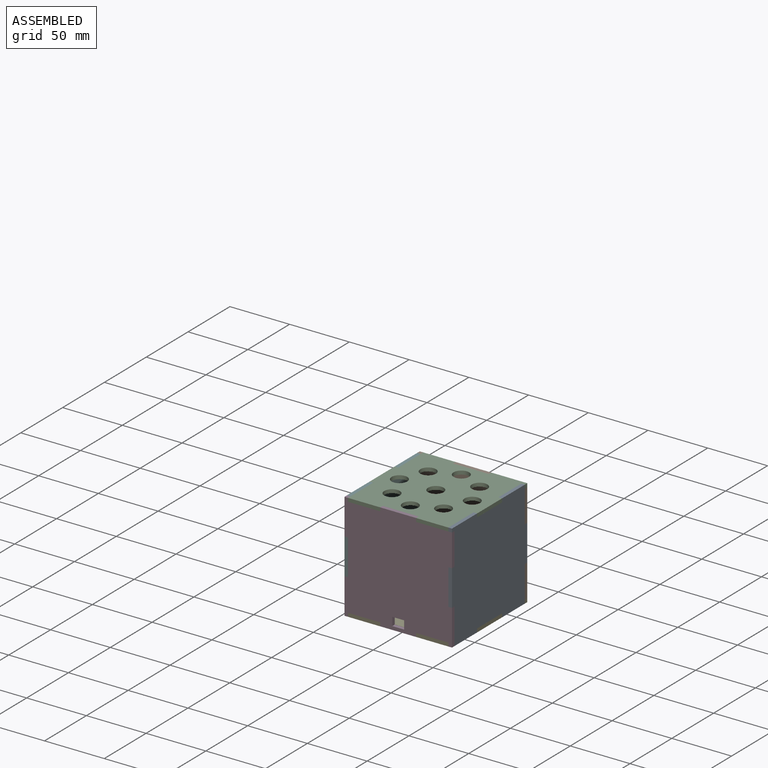
[diagram: assembled view]
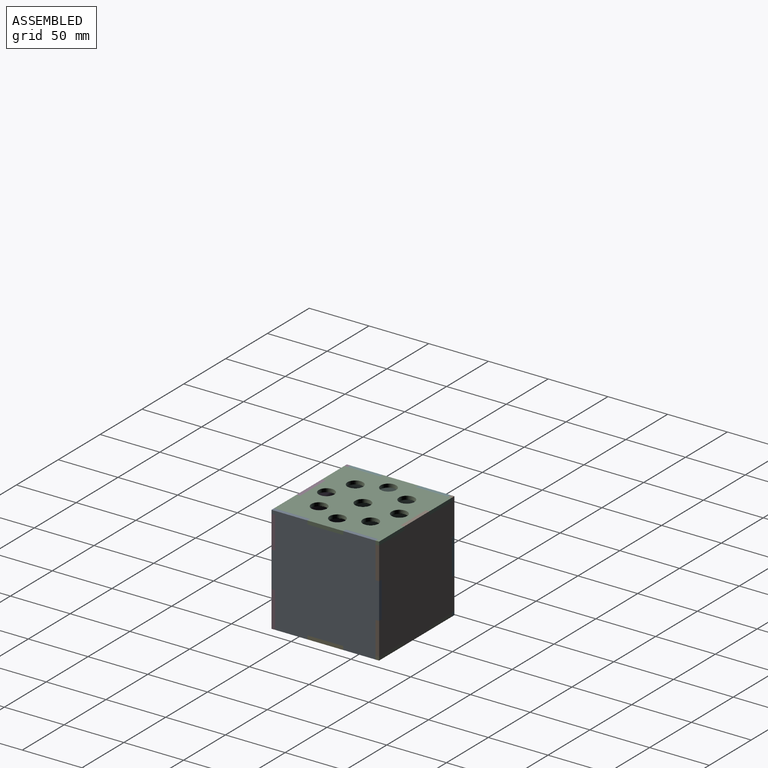
[diagram: assembled view, second angle]
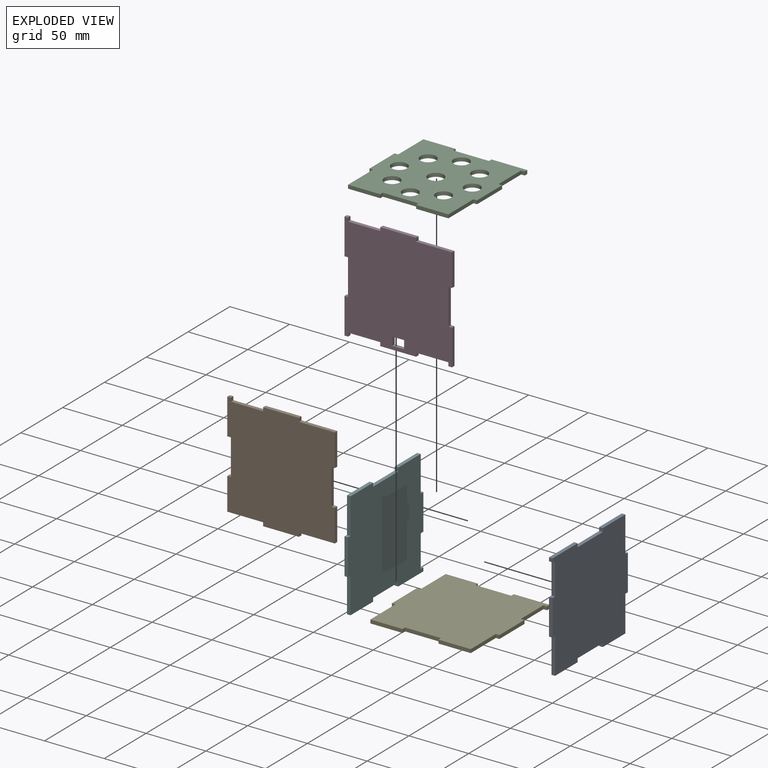
[diagram: exploded view]
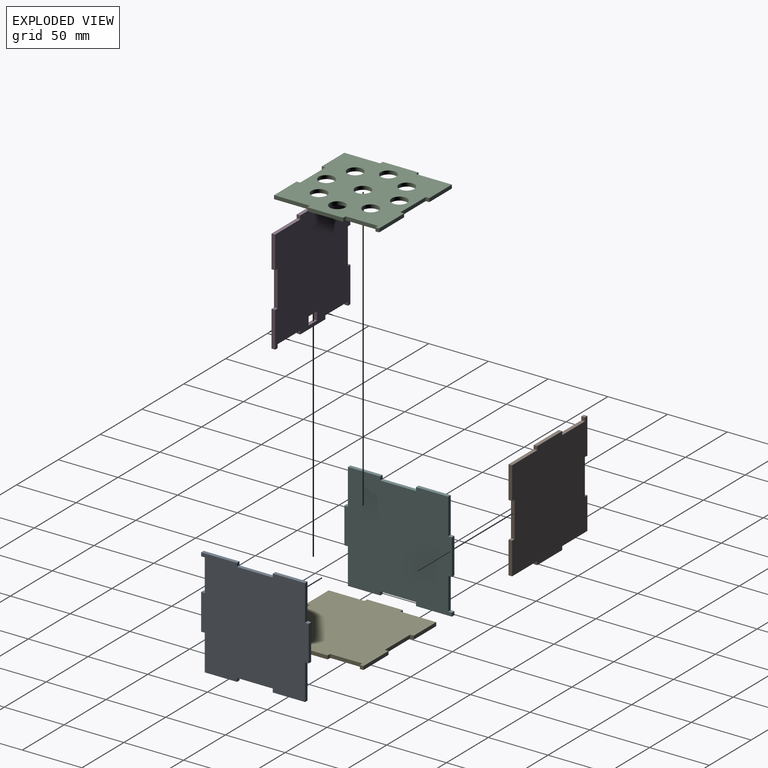
[diagram: exploded view, second angle]
ASSEMBLY  parts=6 mates=5
PART A: 24 faces, bbox 90x90x3 mm
  f0: plane 3x3mm, normal (-1,0,0), area 9mm2, adj f1,f21,f22,f23
  f1: plane 30x3mm, normal (0,-1,0), area 90mm2, adj f0,f2,f22,f23
  f2: plane 3x3mm, normal (1,0,0), area 9mm2, adj f1,f3,f22,f23
  f3: plane 30x3mm, normal (0,-1,0), area 90mm2, adj f2,f4,f22,f23
  f4: plane 27x3mm, normal (1,0,0), area 81mm2, adj f3,f5,f22,f23
  f5: plane 3x3mm, normal (0,1,0), area 9mm2, adj f4,f6,f22,f23
  f6: plane 30x3mm, normal (1,0,0), area 90mm2, adj f5,f7,f22,f23
  f7: plane 3x3mm, normal (0,-1,0), area 9mm2, adj f6,f8,f22,f23
  f8: plane 30x3mm, normal (1,0,0), area 90mm2, adj f7,f9,f22,f23
  f9: plane 3x3mm, normal (0,1,0), area 9mm2, adj f8,f10,f22,f23
  f10: plane 3x3mm, normal (-1,0,0), area 9mm2, adj f9,f11,f22,f23
  f11: plane 27x3mm, normal (0,1,0), area 81mm2, adj f10,f12,f22,f23
  f12: plane 3x3mm, normal (1,0,0), area 9mm2, adj f11,f13,f22,f23
  f13: plane 30x3mm, normal (0,1,0), area 90mm2, adj f12,f14,f22,f23
  f14: plane 3x3mm, normal (-1,0,0), area 9mm2, adj f13,f15,f22,f23
  f15: plane 30x3mm, normal (0,1,0), area 90mm2, adj f14,f16,f22,f23
  f16: plane 27x3mm, normal (-1,0,0), area 81mm2, adj f15,f17,f22,f23
  f17: plane 3x3mm, normal (0,-1,0), area 9mm2, adj f16,f18,f22,f23
  f18: plane 30x3mm, normal (-1,0,0), area 90mm2, adj f17,f19,f22,f23
  f19: plane 3x3mm, normal (0,1,0), area 9mm2, adj f18,f20,f22,f23
  f20: plane 27x3mm, normal (-1,0,0), area 81mm2, adj f19,f21,f22,f23
  f21: plane 30x3mm, normal (0,-1,0), area 90mm2, adj f0,f20,f22,f23
  f22: plane 90x90mm, normal (0,0,1), area 7569mm2, adj f0,f1,f2,f3,f4,f5,f6,f7
  f23: plane 90x90mm, normal (0,0,-1), area 7569mm2, adj f0,f1,f2,f3,f4,f5,f6,f7
PART B: same geometry as A
PART C: 33 faces, bbox 90x90x3 mm
  f0: plane 3x3mm, normal (-1,0,0), area 9mm2, adj f1,f21,f22,f23
  f1: plane 30x3mm, normal (0,-1,0), area 90mm2, adj f0,f2,f22,f23
  f2: plane 3x3mm, normal (1,0,0), area 9mm2, adj f1,f3,f22,f23
  f3: plane 30x3mm, normal (0,-1,0), area 90mm2, adj f2,f4,f22,f23
  f4: plane 27x3mm, normal (1,0,0), area 81mm2, adj f3,f5,f22,f23
  f5: plane 3x3mm, normal (0,1,0), area 9mm2, adj f4,f6,f22,f23
  f6: plane 30x3mm, normal (1,0,0), area 90mm2, adj f5,f7,f22,f23
  f7: plane 3x3mm, normal (0,-1,0), area 9mm2, adj f6,f8,f22,f23
  f8: plane 30x3mm, normal (1,0,0), area 90mm2, adj f7,f9,f22,f23
  f9: plane 3x3mm, normal (0,1,0), area 9mm2, adj f8,f10,f22,f23
  f10: plane 3x3mm, normal (-1,0,0), area 9mm2, adj f9,f11,f22,f23
  f11: plane 27x3mm, normal (0,1,0), area 81mm2, adj f10,f12,f22,f23
  f12: plane 3x3mm, normal (1,0,0), area 9mm2, adj f11,f13,f22,f23
  f13: plane 30x3mm, normal (0,1,0), area 90mm2, adj f12,f14,f22,f23
  f14: plane 3x3mm, normal (-1,0,0), area 9mm2, adj f13,f15,f22,f23
  f15: plane 30x3mm, normal (0,1,0), area 90mm2, adj f14,f16,f22,f23
  f16: plane 27x3mm, normal (-1,0,0), area 81mm2, adj f15,f17,f22,f23
  f17: plane 3x3mm, normal (0,-1,0), area 9mm2, adj f16,f18,f22,f23
  f18: plane 30x3mm, normal (-1,0,0), area 90mm2, adj f17,f19,f22,f23
  f19: plane 3x3mm, normal (0,1,0), area 9mm2, adj f18,f20,f22,f23
  f20: plane 27x3mm, normal (-1,0,0), area 81mm2, adj f19,f21,f22,f23
  f21: plane 30x3mm, normal (0,-1,0), area 90mm2, adj f0,f20,f22,f23
  f22: plane 90x90mm, normal (0,0,1), area 6374.4mm2, adj f0,f1,f2,f3,f4,f5,f6,f7
  f23: plane 90x90mm, normal (0,0,-1), area 6374.4mm2, adj f0,f1,f2,f3,f4,f5,f6,f7
  f24: cylinder r=6.5mm len=13mm, axis (0,0,1), area 122.5mm2, adj f22,f23
  f25: cylinder r=6.5mm len=13mm, axis (0,0,1), area 122.5mm2, adj f22,f23
  f26: cylinder r=6.5mm len=13mm, axis (0,0,1), area 122.5mm2, adj f22,f23
  f27: cylinder r=6.5mm len=13mm, axis (0,0,1), area 122.5mm2, adj f22,f23
  f28: cylinder r=6.5mm len=13mm, axis (0,0,1), area 122.5mm2, adj f22,f23
  f29: cylinder r=6.5mm len=13mm, axis (0,0,1), area 122.5mm2, adj f22,f23
  f30: cylinder r=6.5mm len=13mm, axis (0,0,1), area 122.5mm2, adj f22,f23
  f31: cylinder r=6.5mm len=13mm, axis (0,0,1), area 122.5mm2, adj f22,f23
  f32: cylinder r=6.5mm len=13mm, axis (0,0,1), area 122.5mm2, adj f22,f23
PART D: 32 faces, bbox 90x90x3 mm
  f0: plane 90x90mm, normal (0,0,1), area 7517mm2, adj f2,f3,f4,f5,f6,f7,f8,f9
  f1: plane 90x90mm, normal (0,0,-1), area 7517mm2, adj f2,f3,f4,f5,f6,f7,f8,f9
  f2: plane 3x3mm, normal (-1,0,0), area 9mm2, adj f0,f1,f3,f27
  f3: plane 30x3mm, normal (0,-1,0), area 90mm2, adj f0,f1,f2,f4
  f4: plane 3x3mm, normal (1,0,0), area 9mm2, adj f0,f1,f3,f5
  f5: plane 27x3mm, normal (0,-1,0), area 81mm2, adj f0,f1,f4,f6
  f6: plane 3x3mm, normal (-1,0,0), area 9mm2, adj f0,f1,f5,f7
  f7: plane 3x3mm, normal (0,-1,0), area 9mm2, adj f0,f1,f6,f8
  f8: plane 30x3mm, normal (1,0,0), area 90mm2, adj f0,f1,f7,f9
  f9: plane 3x3mm, normal (0,1,0), area 9mm2, adj f0,f1,f8,f10
  f10: plane 30x3mm, normal (1,0,0), area 90mm2, adj f0,f1,f9,f11
  f11: plane 3x3mm, normal (0,-1,0), area 9mm2, adj f0,f1,f10,f12
  f12: plane 30x3mm, normal (1,0,0), area 90mm2, adj f0,f1,f11,f13
  f13: plane 3x3mm, normal (0,1,0), area 9mm2, adj f0,f1,f12,f14
  f14: plane 3x3mm, normal (-1,0,0), area 9mm2, adj f0,f1,f13,f15
  f15: plane 27x3mm, normal (0,1,0), area 81mm2, adj f0,f1,f14,f16
  f16: plane 3x3mm, normal (1,0,0), area 9mm2, adj f0,f1,f15,f17
  f17: plane 30x3mm, normal (0,1,0), area 90mm2, adj f0,f1,f16,f18
  f18: plane 3x3mm, normal (-1,0,0), area 9mm2, adj f0,f1,f17,f19
  f19: plane 30x3mm, normal (0,1,0), area 90mm2, adj f0,f1,f18,f20
  f20: plane 27x3mm, normal (-1,0,0), area 81mm2, adj f0,f1,f19,f21
  f21: plane 3x3mm, normal (0,-1,0), area 9mm2, adj f0,f1,f20,f22
  f22: plane 30x3mm, normal (-1,0,0), area 90mm2, adj f0,f1,f21,f23
  f23: plane 3x3mm, normal (0,1,0), area 9mm2, adj f0,f1,f22,f24
  f24: plane 30x3mm, normal (-1,0,0), area 90mm2, adj f0,f1,f23,f25
  f25: plane 3x3mm, normal (0,-1,0), area 9mm2, adj f0,f1,f24,f26
  f26: plane 3x3mm, normal (1,0,0), area 9mm2, adj f0,f1,f25,f27
  f27: plane 27x3mm, normal (0,-1,0), area 81mm2, adj f0,f1,f2,f26
  f28: plane 10x3mm, normal (0,-1,0), area 30mm2, adj f0,f1,f29,f31
  f29: plane 7x3mm, normal (1,0,0), area 21mm2, adj f0,f1,f28,f30
  f30: plane 10x3mm, normal (0,1,0), area 30mm2, adj f0,f1,f29,f31
  f31: plane 7x3mm, normal (-1,0,0), area 21mm2, adj f0,f1,f28,f30
PART E: same geometry as A
PART F: same geometry as A
PLACE A rot(axis=(-0.71,0,-0.71),180deg) t=(41.95,25.07,-20.32)mm
PLACE B rot(axis=(0,-0.71,-0.71),180deg) t=(-0.05,67.07,-20.32)mm
PLACE C rot(axis=(0.71,0.71,0),180deg) t=(-0.05,25.07,24.68)mm
PLACE D rot(axis=(0,-0.71,-0.71),180deg) t=(-0.05,-19.93,-20.32)mm
PLACE E rot(axis=(0.71,0.71,0),180deg) t=(-0.05,25.07,-62.32)mm
PLACE F rot(axis=(0,1,0),90deg) t=(-45.05,25.07,-20.32)mm
MATE fastened E.f18 <-> D.f0  axis (0,-1,0) through (-0.05,-16.93,-65.32)mm
MATE fastened E.f6 <-> B.f23  axis (0,1,0) through (-0.05,67.07,-65.32)mm
MATE fastened A.f23 <-> B.f18  axis (-1,0,0) through (41.95,70.07,-20.32)mm
MATE fastened F.f22 <-> B.f6  axis (1,0,0) through (-42.05,70.07,-20.32)mm
MATE fastened C.f22 <-> A.f6  axis (0,0,-1) through (44.95,25.07,21.68)mm
